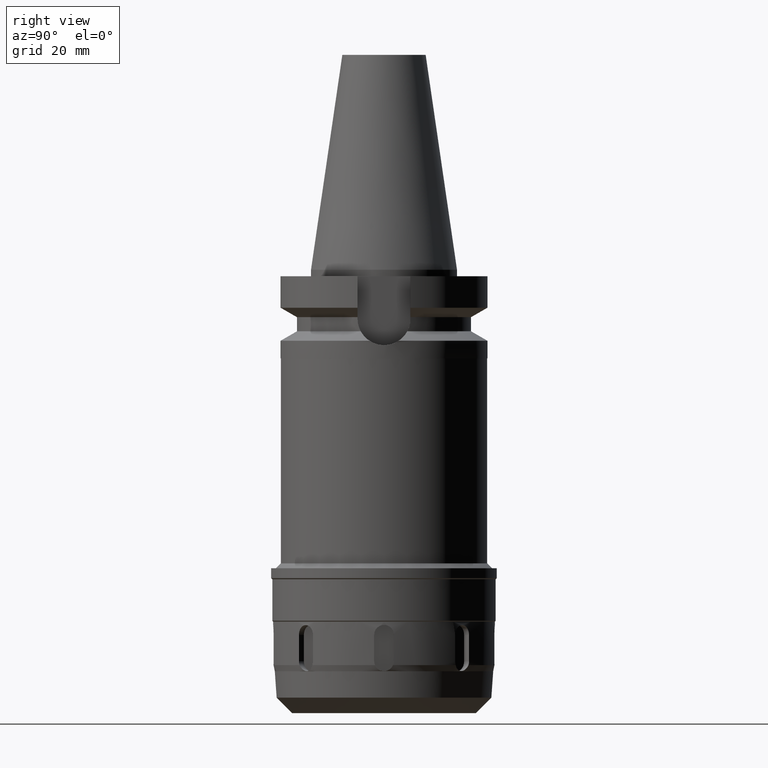
[diagram: clean part render]
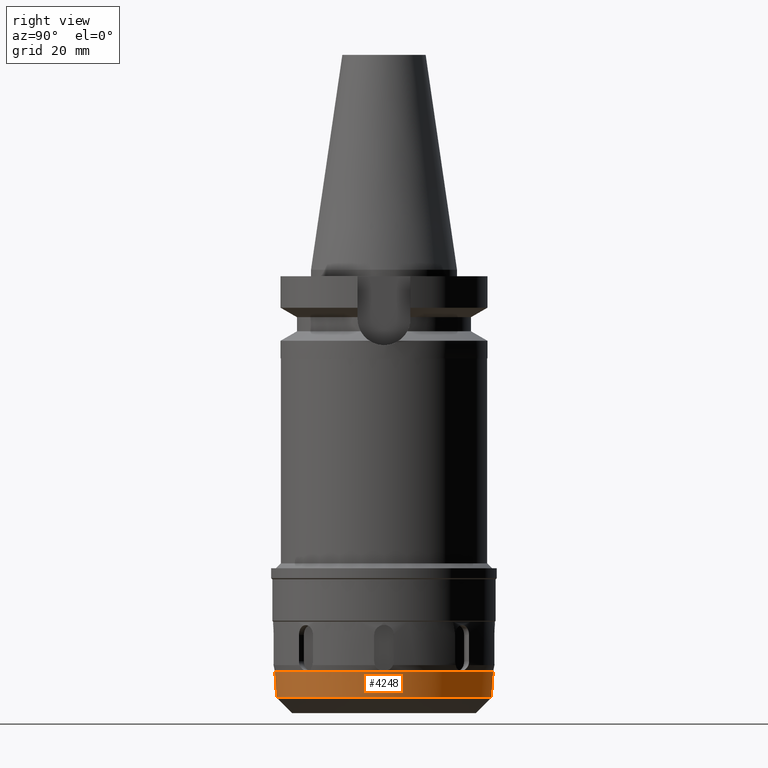
[diagram: same view with one face highlighted and labeled with its STEP entity id]
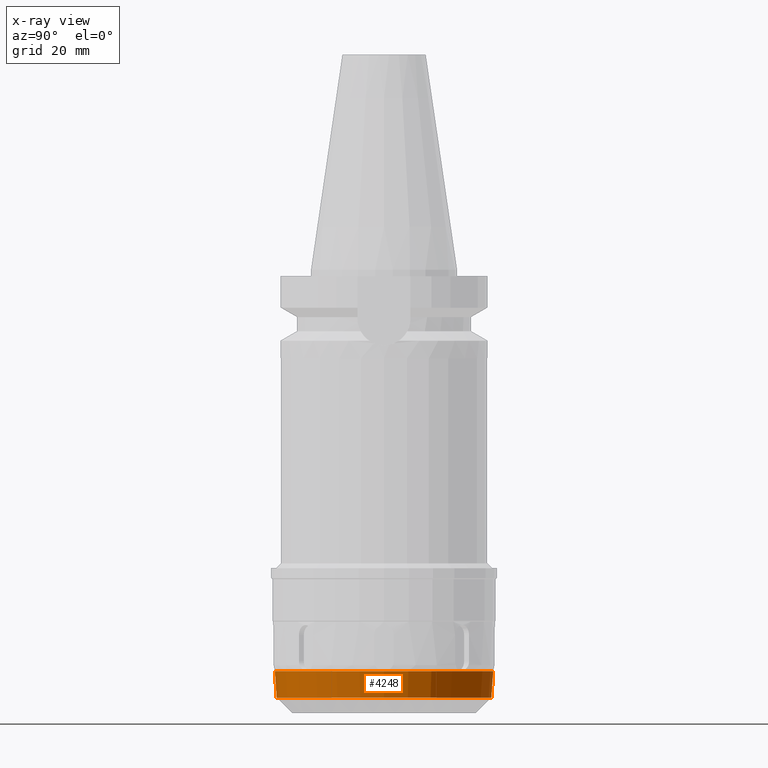
[diagram: x-ray of the same camera — body ghosted, the highlighted face saturated]
A machine part, right view. The second image highlights one B-rep face of the part: STEP entity #4248.
The next image is the same camera in x-ray: the body ghosted, the highlighted face saturated — about 0% of this face is hidden behind the body in this view.
In plain terms, the highlighted conical surface has half-angle 4 deg.
Its self-contained STEP definition (entity closure, byte-faithful):
#2098=DIRECTION('',(0.E0,-6.975647374481E-2,-9.975640502598E-1));
#2099=VECTOR('',#2098,8.065102160010E0);
#2100=CARTESIAN_POINT('',(0.E0,3.324959308707E1,-1.222675440235E2));
#2101=LINE('',#2100,#2099);
#2105=CARTESIAN_POINT('',(0.E0,0.E0,-1.222675440235E2));
#2106=DIRECTION('',(0.E0,0.E0,1.E0));
#2107=DIRECTION('',(0.E0,-1.E0,0.E0));
#2108=AXIS2_PLACEMENT_3D('',#2105,#2106,#2107);
#2113=DIRECTION('',(0.E0,6.975647374482E-2,-9.975640502598E-1));
#2114=VECTOR('',#2113,8.065102160010E0);
#2115=CARTESIAN_POINT('',(-6.313504286221E-14,-3.324959308707E1,
-1.222675440235E2));
#2116=LINE('',#2115,#2114);
#2142=CARTESIAN_POINT('',(0.E0,0.E0,-1.30313E2));
#2143=DIRECTION('',(0.E0,0.E0,1.E0));
#2144=DIRECTION('',(0.E0,-1.E0,0.E0));
#2145=AXIS2_PLACEMENT_3D('',#2142,#2143,#2144);
#2542=CARTESIAN_POINT('',(0.E0,3.2687E1,-1.30313E2));
#2543=VERTEX_POINT('',#2542);
#2544=CARTESIAN_POINT('',(0.E0,-3.2687E1,-1.30313E2));
#2545=VERTEX_POINT('',#2544);
#2546=CARTESIAN_POINT('',(0.E0,3.324959308707E1,-1.222675440235E2));
#2547=VERTEX_POINT('',#2546);
#2548=CARTESIAN_POINT('',(-1.221981849497E-13,-3.324959308708E1,
-1.222675440235E2));
#2549=VERTEX_POINT('',#2548);
#4234=CARTESIAN_POINT('',(0.E0,0.E0,-1.262902720118E2));
#4235=DIRECTION('',(0.E0,0.E0,1.E0));
#4236=DIRECTION('',(0.E0,1.E0,0.E0));
#4237=AXIS2_PLACEMENT_3D('',#4234,#4235,#4236);
#4238=CONICAL_SURFACE('',#4237,3.296829654353E1,4.E0);
#4240=ORIENTED_EDGE('',*,*,#4239,.T.);
#4242=ORIENTED_EDGE('',*,*,#4241,.F.);
#4244=ORIENTED_EDGE('',*,*,#4243,.F.);
#4245=ORIENTED_EDGE('',*,*,#3799,.T.);
#4246=EDGE_LOOP('',(#4240,#4242,#4244,#4245));
#4247=FACE_OUTER_BOUND('',#4246,.F.);
#2109=CIRCLE('',#2108,3.324959308707E1);
#2146=CIRCLE('',#2145,3.2687E1);
#3799=EDGE_CURVE('',#2549,#2547,#2109,.T.);
#4239=EDGE_CURVE('',#2547,#2543,#2101,.T.);
#4241=EDGE_CURVE('',#2545,#2543,#2146,.T.);
#4243=EDGE_CURVE('',#2549,#2545,#2116,.T.);
#4248=ADVANCED_FACE('',(#4247),#4238,.T.);